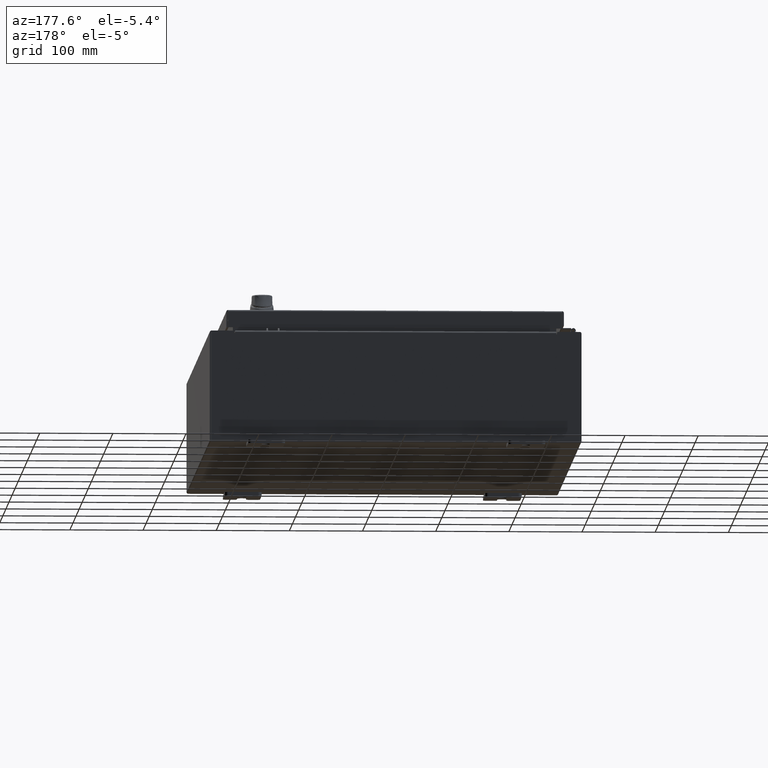
[diagram: clean part render]
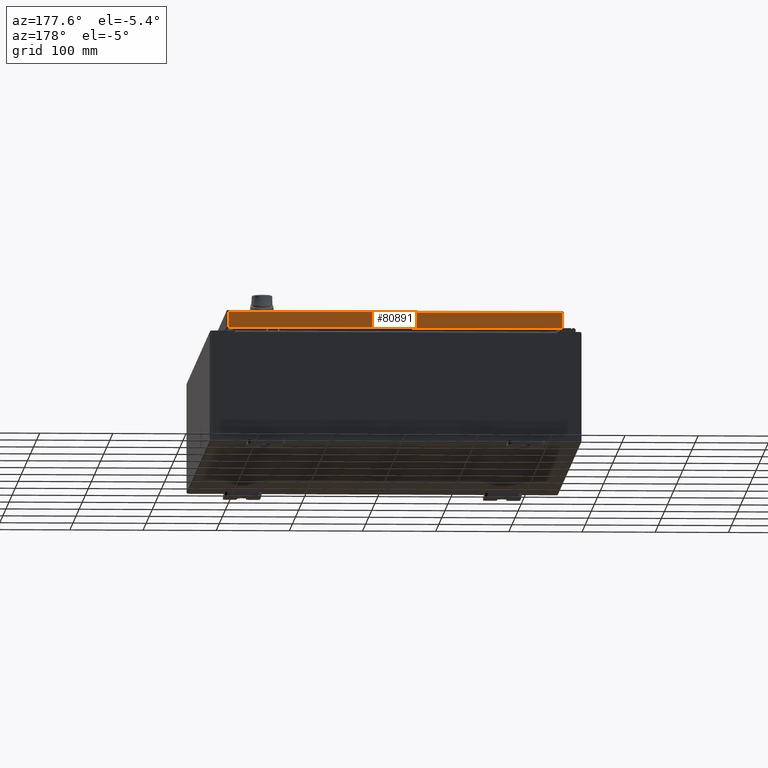
[diagram: same view with one face highlighted and labeled with its STEP entity id]
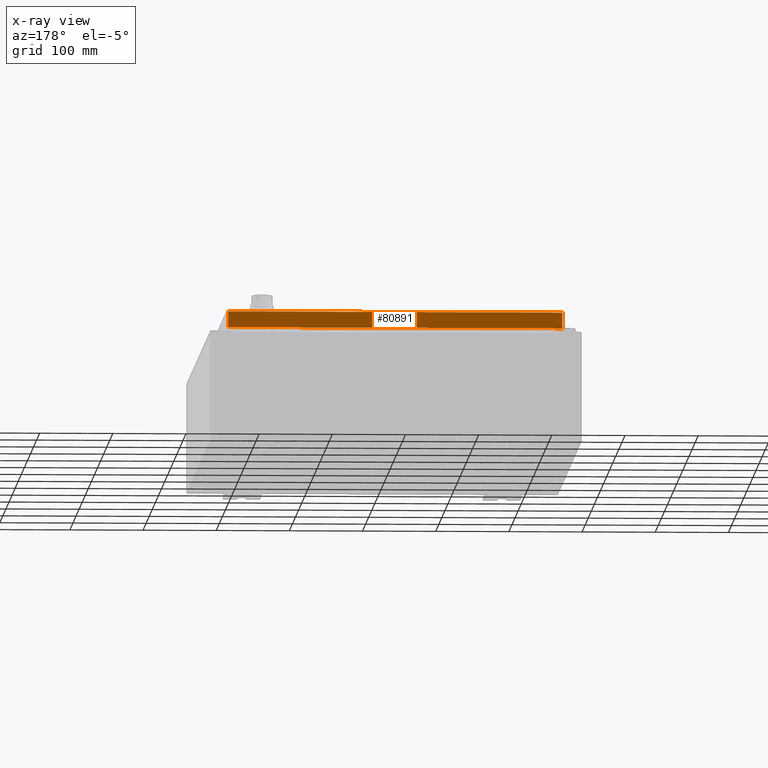
[diagram: x-ray of the same camera — body ghosted, the highlighted face saturated]
A machine part, auxiliary view. The second image highlights one B-rep face of the part: STEP entity #80891.
The next image is the same camera in x-ray: the body ghosted, the highlighted face saturated — about 0% of this face is hidden behind the body in this view.
In plain terms, the highlighted planar face has unit normal (0, -1, -0).
Its self-contained STEP definition (entity closure, byte-faithful):
#1996 = CARTESIAN_POINT ( 'NONE',  ( 8.989157864376268800, 14.09399999999999900, -0.08770000000000008300 ) ) ;
#2549 = EDGE_CURVE ( 'NONE', #41987, #66391, #104348, .T. ) ;
#9337 = VECTOR ( 'NONE', #56899, 39.37007874015748100 ) ;
#9893 = VECTOR ( 'NONE', #95471, 39.37007874015748100 ) ;
#12887 = EDGE_CURVE ( 'NONE', #66391, #36667, #92159, .T. ) ;
#33421 = DIRECTION ( 'NONE',  ( -1.000000000000000000, -3.238851259428369400E-031, -8.109186372806501700E-046 ) ) ;
#33941 = PLANE ( 'NONE',  #106492 ) ;
#34334 = DIRECTION ( 'NONE',  ( 3.238851259428368500E-031, -1.000000000000000000, -2.532419924601859400E-015 ) ) ;
#36667 = VERTEX_POINT ( 'NONE', #41830 ) ;
#37889 = LINE ( 'NONE', #97380, #59395 ) ;
#41031 = ORIENTED_EDGE ( 'NONE', *, *, #92391, .T. ) ;
#41830 = CARTESIAN_POINT ( 'NONE',  ( 8.989157864376268800, 14.09400000000000100, -0.9376999999999997600 ) ) ;
#41987 = VERTEX_POINT ( 'NONE', #83868 ) ;
#49236 = CARTESIAN_POINT ( 'NONE',  ( -8.989157864376267100, 14.09400000000000100, -0.9377000000000020900 ) ) ;
#56899 = DIRECTION ( 'NONE',  ( 0.0000000000000000000, 2.532419924601859400E-015, -1.000000000000000000 ) ) ;
#57461 = ORIENTED_EDGE ( 'NONE', *, *, #108079, .F. ) ;
#59395 = VECTOR ( 'NONE', #33421, 39.37007874015748100 ) ;
#60412 = EDGE_LOOP ( 'NONE', ( #57461, #41031, #89226, #89079 ) ) ;
#66391 = VERTEX_POINT ( 'NONE', #49236 ) ;
#67102 = CARTESIAN_POINT ( 'NONE',  ( -8.989157864376267100, 14.09399999999999900, -0.07469999999999980800 ) ) ;
#67857 = VECTOR ( 'NONE', #94084, 39.37007874015748100 ) ;
#68771 = CARTESIAN_POINT ( 'NONE',  ( -9.077999999999997600, 14.09400000000000100, -0.9377000000000020900 ) ) ;
#74856 = CARTESIAN_POINT ( 'NONE',  ( 8.989157864376268800, 14.09399999999999900, 3.595274007335018000E-014 ) ) ;
#80891 = ADVANCED_FACE ( 'NONE', ( #93848 ), #33941, .F. ) ;
#82317 = LINE ( 'NONE', #74856, #9337 ) ;
#83868 = CARTESIAN_POINT ( 'NONE',  ( -8.989157864376267100, 14.09399999999999900, -0.08770000000000008300 ) ) ;
#89050 = CARTESIAN_POINT ( 'NONE',  ( -4.564836965038341900E-030, 14.09399999999999900, 3.595274007335018000E-014 ) ) ;
#89079 = ORIENTED_EDGE ( 'NONE', *, *, #2549, .F. ) ;
#89226 = ORIENTED_EDGE ( 'NONE', *, *, #12887, .F. ) ;
#92159 = LINE ( 'NONE', #68771, #67857 ) ;
#92391 = EDGE_CURVE ( 'NONE', #103026, #36667, #82317, .T. ) ;
#93848 = FACE_OUTER_BOUND ( 'NONE', #60412, .T. ) ;
#94084 = DIRECTION ( 'NONE',  ( 1.000000000000000000, -4.379057701015054300E-047, 1.278955053213606700E-016 ) ) ;
#95471 = DIRECTION ( 'NONE',  ( -0.0000000000000000000, 2.532419924601859400E-015, -1.000000000000000000 ) ) ;
#97380 = CARTESIAN_POINT ( 'NONE',  ( -9.077999999999997600, 14.09399999999999900, -0.08770000000000008300 ) ) ;
#98300 = DIRECTION ( 'NONE',  ( 0.0000000000000000000, 2.532419924601859400E-015, -1.000000000000000000 ) ) ;
#103026 = VERTEX_POINT ( 'NONE', #1996 ) ;
#104348 = LINE ( 'NONE', #67102, #9893 ) ;
#106492 = AXIS2_PLACEMENT_3D ( 'NONE', #89050, #34334, #98300 ) ;
#108079 = EDGE_CURVE ( 'NONE', #103026, #41987, #37889, .T. ) ;